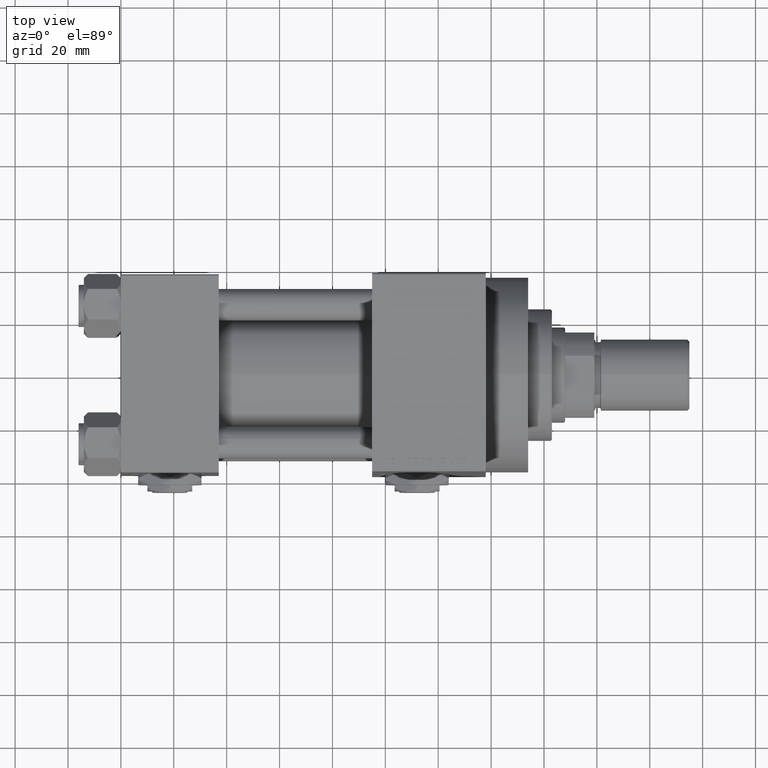
[diagram: clean part render]
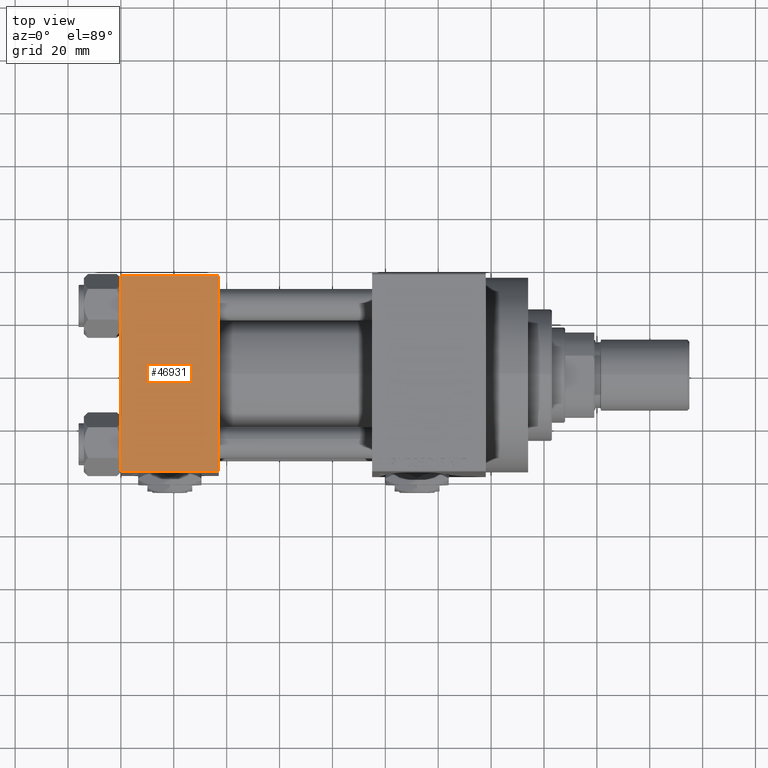
[diagram: same view with one face highlighted and labeled with its STEP entity id]
A machine part, top view. The second image highlights one B-rep face of the part: STEP entity #46931.
In plain terms, the highlighted planar face has unit normal (0, 0, -1).
Its self-contained STEP definition (entity closure, byte-faithful):
#353 = LINE ( 'NONE', #15723, #43957 ) ;
#4797 = VECTOR ( 'NONE', #7580, 1000.000000000000000 ) ;
#7580 = DIRECTION ( 'NONE',  ( -1.000000000000000000, 0.000000000000000000, 0.000000000000000000 ) ) ;
#9342 = VECTOR ( 'NONE', #16324, 1000.000000000000000 ) ;
#10871 = LINE ( 'NONE', #17518, #4797 ) ;
#12849 = DIRECTION ( 'NONE',  ( 0.000000000000000000, 9.251858538542971581E-17, -1.000000000000000000 ) ) ;
#12933 = LINE ( 'NONE', #24764, #24267 ) ;
#13533 = VERTEX_POINT ( 'NONE', #43943 ) ;
#13852 = CARTESIAN_POINT ( 'NONE',  ( 37.00000000000000000, 37.49999999999999289, 37.50000000000000000 ) ) ;
#14537 = EDGE_LOOP ( 'NONE', ( #18091, #25490, #21434, #32313 ) ) ;
#14962 = VERTEX_POINT ( 'NONE', #43925 ) ;
#15723 = CARTESIAN_POINT ( 'NONE',  ( 0.000000000000000000, 37.49999999999999289, 37.50000000000000000 ) ) ;
#16324 = DIRECTION ( 'NONE',  ( 0.000000000000000000, -1.000000000000000000, -9.251858538542971581E-17 ) ) ;
#17417 = EDGE_CURVE ( 'NONE', #13533, #32231, #22878, .T. ) ;
#17518 = CARTESIAN_POINT ( 'NONE',  ( 0.000000000000000000, 36.99999999999999289, 37.50000000000000000 ) ) ;
#17635 = DIRECTION ( 'NONE',  ( 0.000000000000000000, 1.000000000000000000, 9.251858538542971581E-17 ) ) ;
#18091 = ORIENTED_EDGE ( 'NONE', *, *, #42187, .T. ) ;
#21434 = ORIENTED_EDGE ( 'NONE', *, *, #17417, .F. ) ;
#22878 = LINE ( 'NONE', #46983, #9342 ) ;
#24267 = VECTOR ( 'NONE', #27781, 1000.000000000000000 ) ;
#24764 = CARTESIAN_POINT ( 'NONE',  ( 37.00000000000000000, -37.00000000000000711, 37.49999999999999289 ) ) ;
#25490 = ORIENTED_EDGE ( 'NONE', *, *, #27623, .T. ) ;
#25583 = CARTESIAN_POINT ( 'NONE',  ( 0.000000000000000000, -37.00000000000000711, 37.49999999999999289 ) ) ;
#27623 = EDGE_CURVE ( 'NONE', #36848, #32231, #12933, .T. ) ;
#27781 = DIRECTION ( 'NONE',  ( 1.000000000000000000, 0.000000000000000000, 0.000000000000000000 ) ) ;
#32231 = VERTEX_POINT ( 'NONE', #33014 ) ;
#32313 = ORIENTED_EDGE ( 'NONE', *, *, #47653, .T. ) ;
#33014 = CARTESIAN_POINT ( 'NONE',  ( 37.00000000000000000, -37.00000000000000711, 37.49999999999999289 ) ) ;
#35083 = DIRECTION ( 'NONE',  ( 0.000000000000000000, -1.000000000000000000, -9.251858538542971581E-17 ) ) ;
#36848 = VERTEX_POINT ( 'NONE', #25583 ) ;
#42187 = EDGE_CURVE ( 'NONE', #14962, #36848, #353, .T. ) ;
#43925 = CARTESIAN_POINT ( 'NONE',  ( 0.000000000000000000, 36.99999999999999289, 37.50000000000000000 ) ) ;
#43943 = CARTESIAN_POINT ( 'NONE',  ( 37.00000000000000000, 36.99999999999999289, 37.50000000000000000 ) ) ;
#43957 = VECTOR ( 'NONE', #35083, 1000.000000000000000 ) ;
#44012 = FACE_OUTER_BOUND ( 'NONE', #14537, .T. ) ;
#44261 = PLANE ( 'NONE',  #49729 ) ;
#46931 = ADVANCED_FACE ( 'NONE', ( #44012 ), #44261, .F. ) ;
#46983 = CARTESIAN_POINT ( 'NONE',  ( 37.00000000000000000, 37.49999999999999289, 37.50000000000000000 ) ) ;
#47653 = EDGE_CURVE ( 'NONE', #13533, #14962, #10871, .T. ) ;
#49729 = AXIS2_PLACEMENT_3D ( 'NONE', #13852, #12849, #17635 ) ;